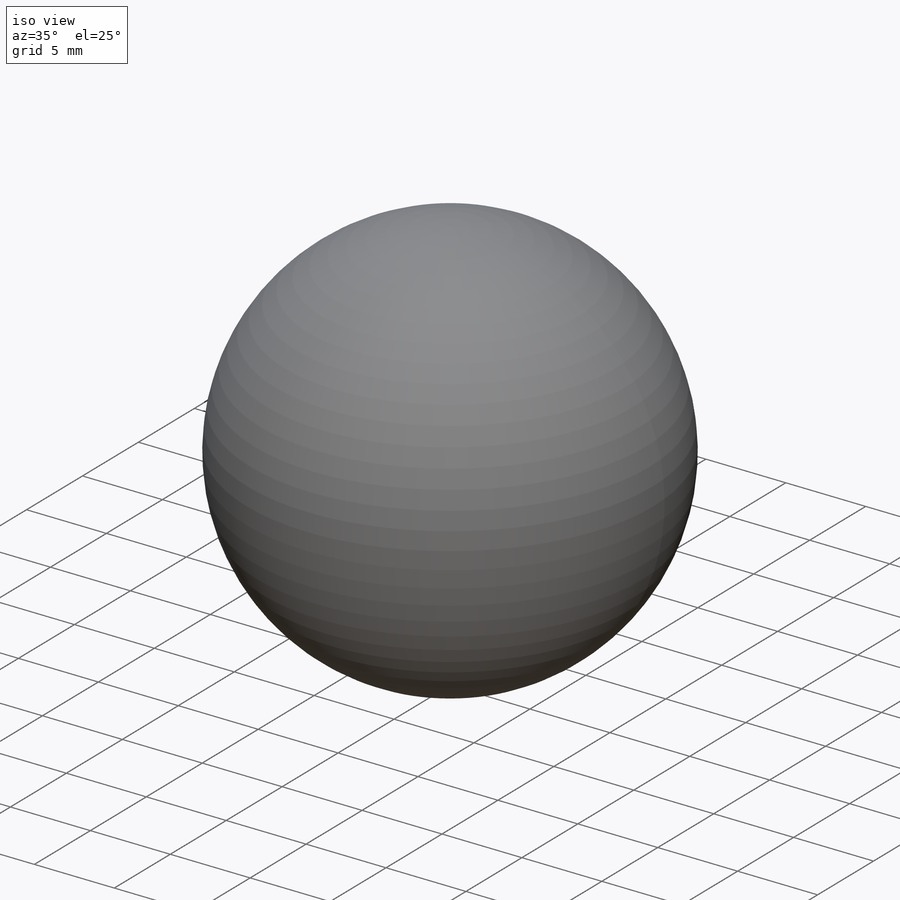
[diagram: iso view]
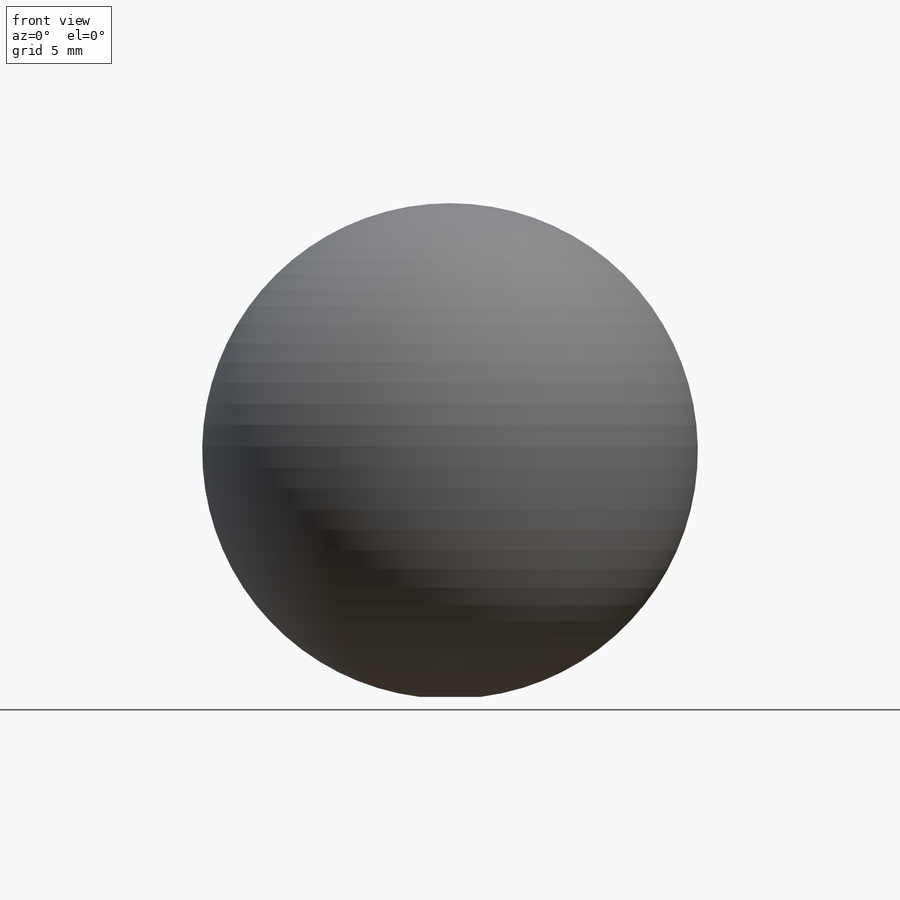
[diagram: front view]
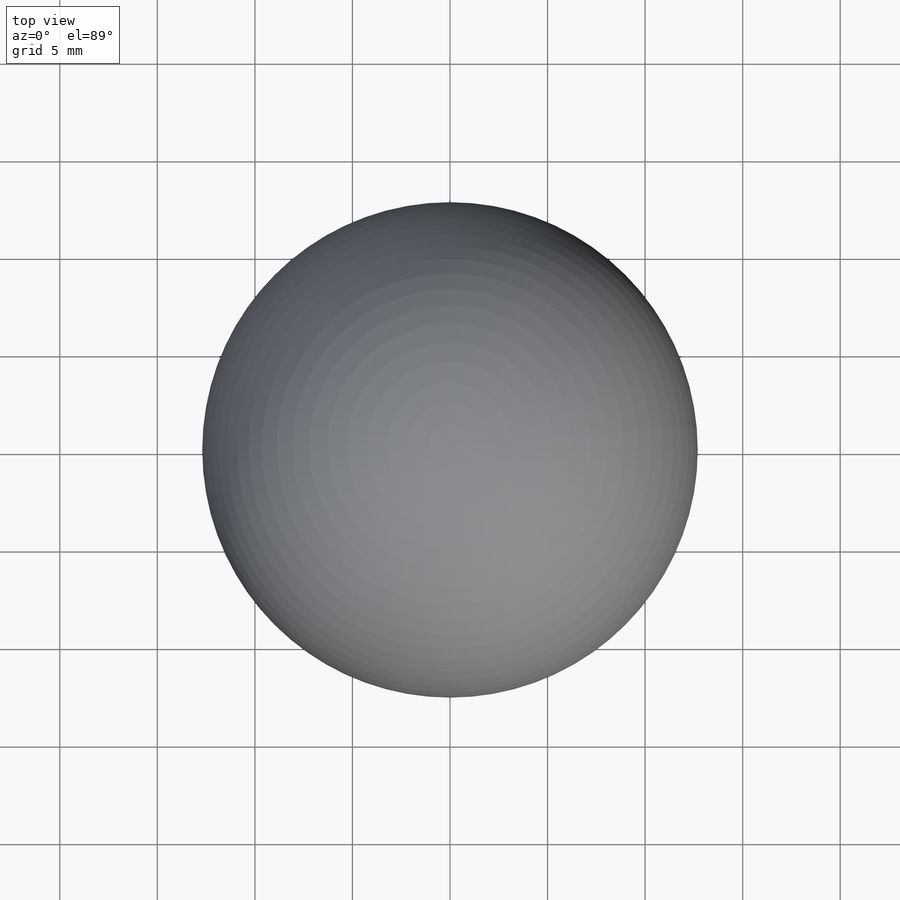
[diagram: top view]
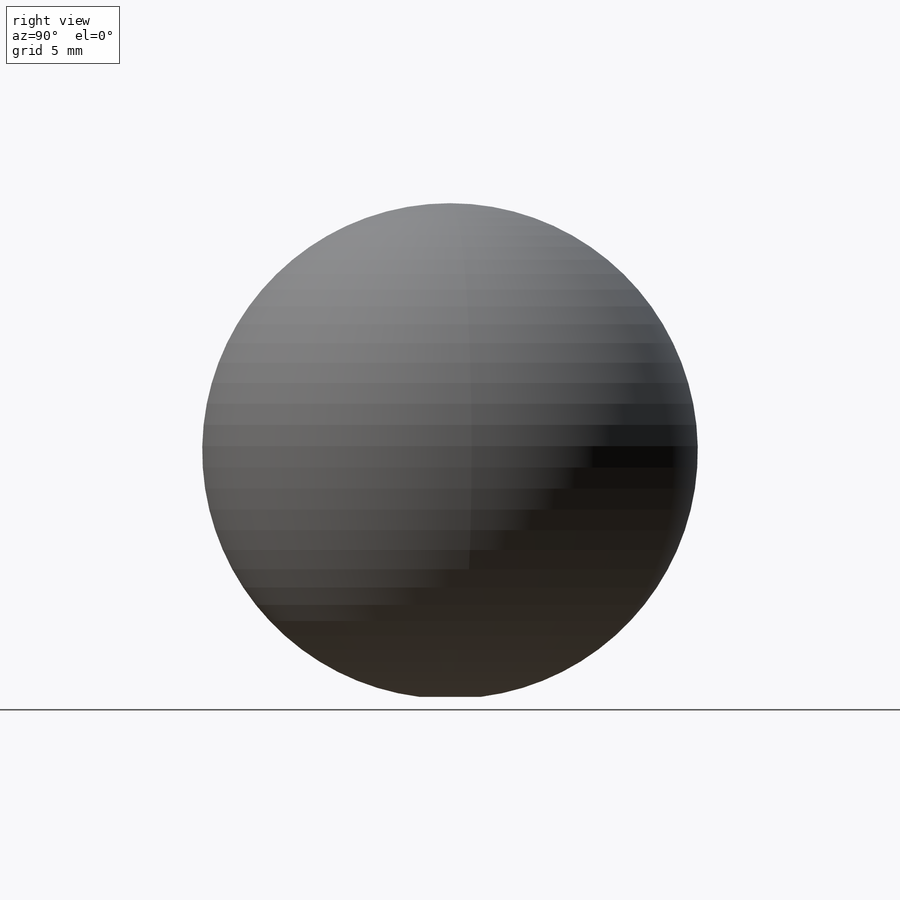
[diagram: right view]
SOLIDWORKS PART (.sldprt)
format: sldprt  version: not decoded by parser v0  size: 286,720 bytes
history: native  units: mm
features: sketch x4, plane x3, material x1, revolve x1, cut_revolve x1, cut_extrude x1 + 3 further entries (+10 scaffold rows collapsed)
feature tree (24):
  scaffold x10  (default folders/planes/origin — collapsed)
  material  "Stainless Steel 440C 58Rc"
  plane  "Plane X-Y"
  plane  "Plane X-Z"
  plane  "Plane Y-Z"
  "Design Table"
  "Axis - Y"
  "Axis - Z"
  sketch  "Sketch1"  dims[Ball_Diameter=25.4mm D2=25.4mm]
  revolve  "Complete_Ball"  Angle=360deg
  sketch  "Sketch7"  dims[hole_dia=3.175mm hole_depth=7.62mm]
  cut_revolve  "Ball_w_concentric_hole"  Angle=360deg
  sketch  "Sketch8"  dims[D1=4.7625mm D2=3.175mm]
  sketch  "Sketch9"  dims[D1=2.032mm]
  cut_extrude  "Cut-Extrude1"  Depth=0.0254mm
decode coverage: 7 of 7 modeling features carry decoded parameters; 3 rows unclassified (native names shown)
note: suppression state not decoded; provenance and decode notes live in map.json
